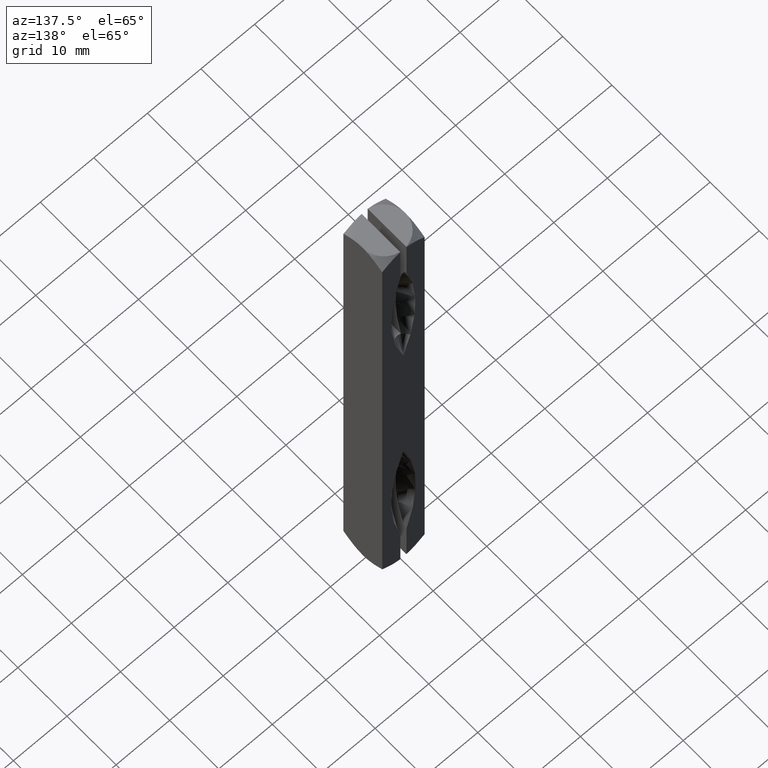
[diagram: clean part render]
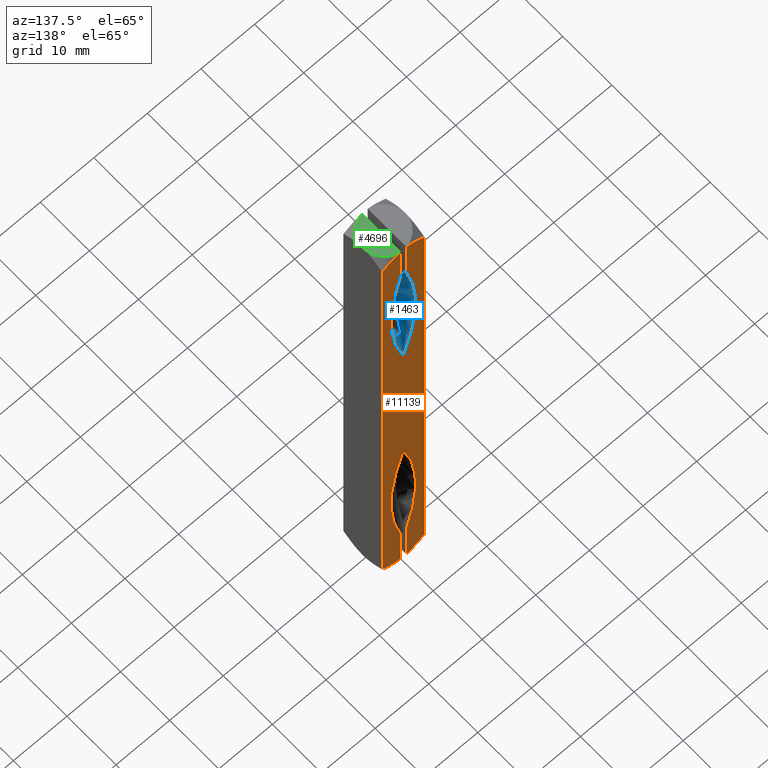
[diagram: same view with three faces highlighted in distinct colors, each labeled with its STEP entity id]
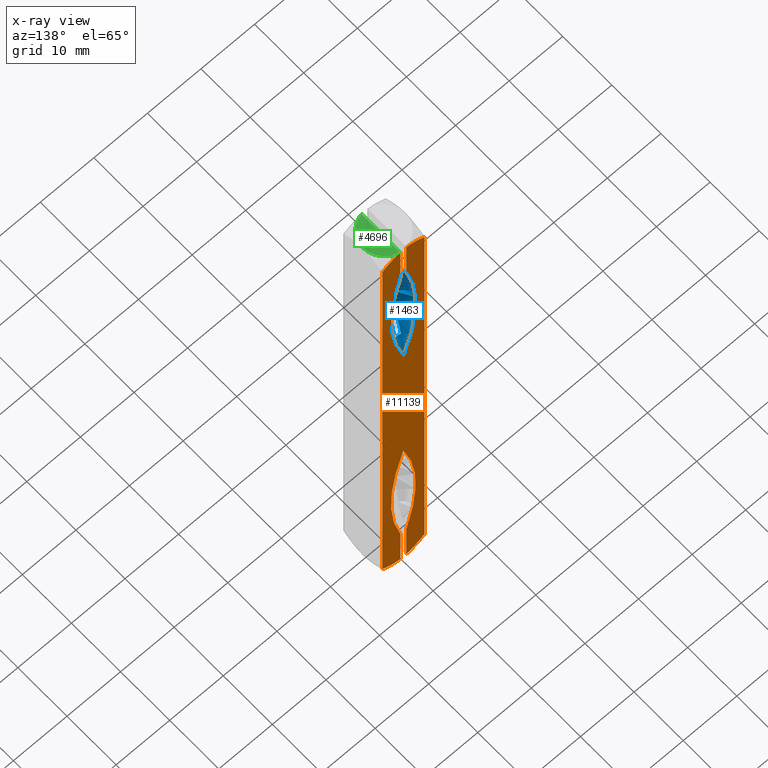
[diagram: x-ray of the same camera — body ghosted, the three highlighted faces saturated]
A machine part, auxiliary view with three faces highlighted in distinct colors.
The next image is the same camera in x-ray (body ghosted, the three faces saturated) — at least one of them is partly hidden behind the body in this view.
Their STEP definitions:

[orange] entity #11139 — the highlighted planar face has unit normal (0, -1, 0).
#27 = PLANE ( 'NONE',  #8204 ) ;
#112 = CARTESIAN_POINT ( 'NONE',  ( -3.950000000000000178, 3.949999999999999734, -48.36385642862627776 ) ) ;
#133 = DIRECTION ( 'NONE',  ( 1.000000000000000000, 1.097926250618232642E-16, 0.000000000000000000 ) ) ;
#300 = VERTEX_POINT ( 'NONE', #3469 ) ;
#350 = EDGE_CURVE ( 'NONE', #5080, #1837, #11389, .T. ) ;
#380 = CARTESIAN_POINT ( 'NONE',  ( 0.5749999999999996225, 3.950000000000000178, -41.66519112057019925 ) ) ;
#493 = CARTESIAN_POINT ( 'NONE',  ( -41.45869565217392960, 3.949999999999996181, 29.50000000000000355 ) ) ;
#658 = ORIENTED_EDGE ( 'NONE', *, *, #6502, .F. ) ;
#884 = CARTESIAN_POINT ( 'NONE',  ( -3.434571444506581361, 3.949999999999999734, 48.71974498816135934 ) ) ;
#921 = CARTESIAN_POINT ( 'NONE',  ( -0.8847542057004180727, 3.949999999999999734, 49.91374761358014922 ) ) ;
#926 = CARTESIAN_POINT ( 'NONE',  ( -0.5749999999999999556, 3.949999999999999734, -49.95836812819619155 ) ) ;
#1037 = CARTESIAN_POINT ( 'NONE',  ( 0.5749999999999999556, 3.950000000000000178, 50.00000000000000000 ) ) ;
#1087 = VERTEX_POINT ( 'NONE', #6215 ) ;
#1097 = CARTESIAN_POINT ( 'NONE',  ( 3.439399596264872905, 3.950000000000001066, -48.72490543658398821 ) ) ;
#1176 = AXIS2_PLACEMENT_3D ( 'NONE', #493, #5851, #1346 ) ;
#1346 = DIRECTION ( 'NONE',  ( 1.000000000000000000, 1.189288288960203285E-16, 0.000000000000000000 ) ) ;
#1386 = ORIENTED_EDGE ( 'NONE', *, *, #5367, .F. ) ;
#1400 = CIRCLE ( 'NONE', #6655, 43.75869565217392676 ) ;
#1547 = CARTESIAN_POINT ( 'NONE',  ( -0.5749999999999999556, 3.949999999999999734, 49.95836812819619155 ) ) ;
#1555 = CARTESIAN_POINT ( 'NONE',  ( 0.8878538644536024815, 3.950000000000001066, 49.91330110352105720 ) ) ;
#1564 = AXIS2_PLACEMENT_3D ( 'NONE', #4280, #1592, #11255 ) ;
#1583 = LINE ( 'NONE', #11079, #8012 ) ;
#1592 = DIRECTION ( 'NONE',  ( -1.097926250618232642E-16, 1.000000000000000000, -0.000000000000000000 ) ) ;
#1600 = CARTESIAN_POINT ( 'NONE',  ( -0.5749999999999999556, 3.949999999999999734, 50.00000000000000000 ) ) ;
#1760 = ORIENTED_EDGE ( 'NONE', *, *, #2490, .T. ) ;
#1794 = CARTESIAN_POINT ( 'NONE',  ( -1.193592490280931839, 3.949999999999999734, -49.83290573236171639 ) ) ;
#1822 = CARTESIAN_POINT ( 'NONE',  ( -0.5749999999999999556, 3.949999999999999734, 49.95836812819619155 ) ) ;
#1837 = VERTEX_POINT ( 'NONE', #1547 ) ;
#1867 = CARTESIAN_POINT ( 'NONE',  ( -2.901610006892348270, 3.949999999999999734, 49.05320236138543066 ) ) ;
#2022 = CARTESIAN_POINT ( 'NONE',  ( 3.949999999999998845, 3.950000000000000178, -48.36385642862627776 ) ) ;
#2125 = CIRCLE ( 'NONE', #9594, 43.75869565217392676 ) ;
#2147 = CARTESIAN_POINT ( 'NONE',  ( 3.949999999999998845, 3.950000000000000178, 48.36385642862627776 ) ) ;
#2240 = VECTOR ( 'NONE', #5919, 1000.000000000000000 ) ;
#2246 = EDGE_CURVE ( 'NONE', #3272, #1087, #5876, .T. ) ;
#2331 = CARTESIAN_POINT ( 'NONE',  ( -3.950000000000000178, 3.949999999999999734, 48.36385642862627776 ) ) ;
#2346 = CARTESIAN_POINT ( 'NONE',  ( 3.949999999999998845, 3.950000000000000178, 48.36385642862627776 ) ) ;
#2490 = EDGE_CURVE ( 'NONE', #300, #9243, #11150, .T. ) ;
#2600 = VECTOR ( 'NONE', #6360, 1000.000000000000000 ) ;
#2606 = VERTEX_POINT ( 'NONE', #3558 ) ;
#2653 = ORIENTED_EDGE ( 'NONE', *, *, #8607, .F. ) ;
#2684 = VERTEX_POINT ( 'NONE', #10040 ) ;
#2801 = ORIENTED_EDGE ( 'NONE', *, *, #350, .T. ) ;
#2871 = EDGE_CURVE ( 'NONE', #9243, #2684, #3571, .T. ) ;
#2981 = EDGE_CURVE ( 'NONE', #4907, #9829, #11568, .T. ) ;
#2991 = DIRECTION ( 'NONE',  ( 1.000000000000000000, 1.189288288960203285E-16, 0.000000000000000000 ) ) ;
#3272 = VERTEX_POINT ( 'NONE', #112 ) ;
#3331 = CARTESIAN_POINT ( 'NONE',  ( 0.5749999999999999556, 3.950000000000000178, -49.95836812819619155 ) ) ;
#3355 = EDGE_LOOP ( 'NONE', ( #8167, #8796, #1760, #7972, #2653, #7968, #3649, #7186, #1386, #4357, #658, #2801, #10518, #10829 ) ) ;
#3381 = EDGE_CURVE ( 'NONE', #7448, #300, #8165, .T. ) ;
#3469 = CARTESIAN_POINT ( 'NONE',  ( 0.5749999999999999556, 3.950000000000000178, 49.95836812819619155 ) ) ;
#3506 = CARTESIAN_POINT ( 'NONE',  ( -2.071111263113985856, 3.949999999999999734, 49.49639762068309068 ) ) ;
#3558 = CARTESIAN_POINT ( 'NONE',  ( -0.5750000000000002887, 3.950000000000557066, -41.66519112057266483 ) ) ;
#3560 = CARTESIAN_POINT ( 'NONE',  ( -3.950000000000000178, 3.949999999999999734, -48.36385642862627776 ) ) ;
#3571 = LINE ( 'NONE', #8725, #7191 ) ;
#3643 = VERTEX_POINT ( 'NONE', #7467 ) ;
#3649 = ORIENTED_EDGE ( 'NONE', *, *, #5082, .F. ) ;
#3811 = VERTEX_POINT ( 'NONE', #7921 ) ;
#3840 = CARTESIAN_POINT ( 'NONE',  ( 0.5749999999999999556, 3.950000000000000178, -50.00000000000000000 ) ) ;
#3981 = EDGE_CURVE ( 'NONE', #3643, #7448, #6200, .T. ) ;
#4280 = CARTESIAN_POINT ( 'NONE',  ( -41.45869565217392960, 3.949999999999996181, -29.50000000000000355 ) ) ;
#4357 = ORIENTED_EDGE ( 'NONE', *, *, #2246, .F. ) ;
#4369 = CARTESIAN_POINT ( 'NONE',  ( -2.071111263113985856, 3.949999999999999734, -49.49639762068309068 ) ) ;
#4463 = CARTESIAN_POINT ( 'NONE',  ( -3.694443923187062495, 3.950000000000000178, 48.54456186351412583 ) ) ;
#4652 = CARTESIAN_POINT ( 'NONE',  ( 1.192251377293276127, 3.950000000000000178, -49.83343443617616941 ) ) ;
#4864 = CARTESIAN_POINT ( 'NONE',  ( -4.336808689942019708E-16, 3.950000000000000178, -15.50000000000000000 ) ) ;
#4907 = VERTEX_POINT ( 'NONE', #380 ) ;
#4941 = CARTESIAN_POINT ( 'NONE',  ( 2.915151072964055956, 3.950000000000000178, 49.06418117581977612 ) ) ;
#5058 = CARTESIAN_POINT ( 'NONE',  ( 2.078530656980428049, 3.949999999999999734, 49.49293317941775427 ) ) ;
#5080 = VERTEX_POINT ( 'NONE', #2331 ) ;
#5082 = EDGE_CURVE ( 'NONE', #6182, #4907, #7444, .T. ) ;
#5249 = CARTESIAN_POINT ( 'NONE',  ( 41.45869565217392960, 3.950000000000004619, 29.50000000000000355 ) ) ;
#5352 = CARTESIAN_POINT ( 'NONE',  ( -3.950000000000000178, 3.949999999999999734, 50.00000000000000000 ) ) ;
#5367 = EDGE_CURVE ( 'NONE', #1087, #2606, #1583, .T. ) ;
#5405 = DIRECTION ( 'NONE',  ( -0.000000000000000000, -0.000000000000000000, -1.000000000000000000 ) ) ;
#5562 = DIRECTION ( 'NONE',  ( 0.000000000000000000, 0.000000000000000000, 1.000000000000000000 ) ) ;
#5648 = DIRECTION ( 'NONE',  ( 0.000000000000000000, 0.000000000000000000, -1.000000000000000000 ) ) ;
#5851 = DIRECTION ( 'NONE',  ( 1.097926250618232642E-16, -1.000000000000000000, 0.000000000000000000 ) ) ;
#5876 = B_SPLINE_CURVE_WITH_KNOTS ( 'NONE', 3,
 ( #3560, #6250, #11508, #6216, #7100, #4369, #11553, #1794, #9813, #926 ),
 .UNSPECIFIED., .F., .F.,
 ( 4, 2, 2, 2, 4 ),
 ( 0.004661118549124539795, 0.005599011887499370961, 0.006536905225874202127, 0.007474798564249033293, 0.008412691902623864459 ),
 .UNSPECIFIED. ) ;
#5877 = CARTESIAN_POINT ( 'NONE',  ( 1.192251377293276127, 3.950000000000000178, 49.83343443617616941 ) ) ;
#5906 = FACE_OUTER_BOUND ( 'NONE', #3355, .T. ) ;
#5918 = EDGE_CURVE ( 'NONE', #3811, #3643, #2125, .T. ) ;
#5919 = DIRECTION ( 'NONE',  ( 0.000000000000000000, 0.000000000000000000, -1.000000000000000000 ) ) ;
#6149 = DIRECTION ( 'NONE',  ( 1.097926250618232642E-16, -1.000000000000000000, 0.000000000000000000 ) ) ;
#6182 = VERTEX_POINT ( 'NONE', #4864 ) ;
#6200 = CIRCLE ( 'NONE', #1176, 43.75869565217392676 ) ;
#6215 = CARTESIAN_POINT ( 'NONE',  ( -0.5749999999999999556, 3.949999999999999734, -49.95836812819619155 ) ) ;
#6216 = CARTESIAN_POINT ( 'NONE',  ( -2.901610006892348270, 3.949999999999999734, -49.05320236138543066 ) ) ;
#6230 = VECTOR ( 'NONE', #5648, 1000.000000000000000 ) ;
#6250 = CARTESIAN_POINT ( 'NONE',  ( -3.694443923187062495, 3.950000000000000178, -48.54456186351412583 ) ) ;
#6301 = LINE ( 'NONE', #1600, #2240 ) ;
#6360 = DIRECTION ( 'NONE',  ( -0.000000000000000000, 0.000000000000000000, 1.000000000000000000 ) ) ;
#6371 = DIRECTION ( 'NONE',  ( 1.097926250618232642E-16, -1.000000000000000000, 0.000000000000000000 ) ) ;
#6413 = CARTESIAN_POINT ( 'NONE',  ( 0.8878538644536024815, 3.950000000000001066, -49.91330110352105720 ) ) ;
#6502 = EDGE_CURVE ( 'NONE', #5080, #3272, #7559, .T. ) ;
#6536 = CARTESIAN_POINT ( 'NONE',  ( 2.078530656980428049, 3.949999999999999734, -49.49293317941775427 ) ) ;
#6655 = AXIS2_PLACEMENT_3D ( 'NONE', #7433, #8207, #2991 ) ;
#7100 = CARTESIAN_POINT ( 'NONE',  ( -2.628797343441368728, 3.949999999999999734, -49.21126095234776443 ) ) ;
#7174 = CARTESIAN_POINT ( 'NONE',  ( -3.950000000000000178, 3.949999999999999734, 48.36385642862627776 ) ) ;
#7186 = ORIENTED_EDGE ( 'NONE', *, *, #7399, .F. ) ;
#7191 = VECTOR ( 'NONE', #7864, 1000.000000000000000 ) ;
#7195 = EDGE_CURVE ( 'NONE', #1837, #3811, #6301, .T. ) ;
#7304 = CARTESIAN_POINT ( 'NONE',  ( -3.950000000000000178, 3.949999999999999734, 50.00000000000000000 ) ) ;
#7326 = CARTESIAN_POINT ( 'NONE',  ( 1.788693820779227783, 3.949999999999999734, -49.62286766101424718 ) ) ;
#7399 = EDGE_CURVE ( 'NONE', #2606, #6182, #1400, .T. ) ;
#7433 = CARTESIAN_POINT ( 'NONE',  ( 41.45869565217392960, 3.950000000000004619, -29.50000000000000355 ) ) ;
#7444 = CIRCLE ( 'NONE', #1564, 43.75869565217392676 ) ;
#7448 = VERTEX_POINT ( 'NONE', #10187 ) ;
#7467 = CARTESIAN_POINT ( 'NONE',  ( -4.336808689942019708E-16, 3.950000000000000178, 15.50000000000000000 ) ) ;
#7559 = LINE ( 'NONE', #7304, #10672 ) ;
#7677 = CARTESIAN_POINT ( 'NONE',  ( 3.439399596264872905, 3.950000000000001066, 48.72490543658398821 ) ) ;
#7864 = DIRECTION ( 'NONE',  ( -0.000000000000000000, -0.000000000000000000, -1.000000000000000000 ) ) ;
#7921 = CARTESIAN_POINT ( 'NONE',  ( -0.5750000000000002887, 3.950000000000557066, 41.66519112057266483 ) ) ;
#7968 = ORIENTED_EDGE ( 'NONE', *, *, #2981, .F. ) ;
#7972 = ORIENTED_EDGE ( 'NONE', *, *, #2871, .T. ) ;
#7988 = DIRECTION ( 'NONE',  ( 1.000000000000000000, 1.189288288960203285E-16, 0.000000000000000000 ) ) ;
#8012 = VECTOR ( 'NONE', #5562, 1000.000000000000000 ) ;
#8063 = CARTESIAN_POINT ( 'NONE',  ( -1.785555383880211400, 3.949999999999999734, 49.62403072079002442 ) ) ;
#8165 = LINE ( 'NONE', #1037, #2600 ) ;
#8167 = ORIENTED_EDGE ( 'NONE', *, *, #3981, .T. ) ;
#8204 = AXIS2_PLACEMENT_3D ( 'NONE', #5352, #6371, #133 ) ;
#8207 = DIRECTION ( 'NONE',  ( -1.097926250618232642E-16, 1.000000000000000000, -0.000000000000000000 ) ) ;
#8462 = CARTESIAN_POINT ( 'NONE',  ( 0.5749999999999999556, 3.950000000000000178, 49.95836812819619155 ) ) ;
#8586 = CARTESIAN_POINT ( 'NONE',  ( 1.788693820779227783, 3.949999999999999734, 49.62286766101424718 ) ) ;
#8607 = EDGE_CURVE ( 'NONE', #9829, #2684, #11344, .T. ) ;
#8725 = CARTESIAN_POINT ( 'NONE',  ( 3.949999999999998845, 3.950000000000000178, 50.00000000000000000 ) ) ;
#8796 = ORIENTED_EDGE ( 'NONE', *, *, #3381, .T. ) ;
#9021 = CARTESIAN_POINT ( 'NONE',  ( 0.5749999999999999556, 3.950000000000000178, -49.95836812819619155 ) ) ;
#9242 = CARTESIAN_POINT ( 'NONE',  ( 2.915151072964055956, 3.950000000000000178, -49.06418117581977612 ) ) ;
#9243 = VERTEX_POINT ( 'NONE', #2147 ) ;
#9594 = AXIS2_PLACEMENT_3D ( 'NONE', #5249, #6149, #7988 ) ;
#9813 = CARTESIAN_POINT ( 'NONE',  ( -0.8847542057004180727, 3.949999999999999734, -49.91374761358014922 ) ) ;
#9829 = VERTEX_POINT ( 'NONE', #3331 ) ;
#10040 = CARTESIAN_POINT ( 'NONE',  ( 3.949999999999998845, 3.950000000000000178, -48.36385642862627776 ) ) ;
#10187 = CARTESIAN_POINT ( 'NONE',  ( 0.5749999999999996225, 3.950000000000000178, 41.66519112057019925 ) ) ;
#10518 = ORIENTED_EDGE ( 'NONE', *, *, #7195, .T. ) ;
#10672 = VECTOR ( 'NONE', #5405, 1000.000000000000000 ) ;
#10753 = CARTESIAN_POINT ( 'NONE',  ( -2.628797343441368728, 3.949999999999999734, 49.21126095234776443 ) ) ;
#10829 = ORIENTED_EDGE ( 'NONE', *, *, #5918, .T. ) ;
#11079 = CARTESIAN_POINT ( 'NONE',  ( -0.5749999999999999556, 3.949999999999999734, -50.00000000000000000 ) ) ;
#11139 = ADVANCED_FACE ( 'NONE', ( #5906 ), #27, .F. ) ;
#11150 = B_SPLINE_CURVE_WITH_KNOTS ( 'NONE', 3,
 ( #8462, #1555, #5877, #8586, #5058, #4941, #7677, #2346 ),
 .UNSPECIFIED., .F., .F.,
 ( 4, 2, 2, 4 ),
 ( 0.009560210259937361107, 0.01050151590761409098, 0.01144282155529081912, 0.01332543285064428061 ),
 .UNSPECIFIED. ) ;
#11255 = DIRECTION ( 'NONE',  ( 1.000000000000000000, 1.189288288960203285E-16, 0.000000000000000000 ) ) ;
#11344 = B_SPLINE_CURVE_WITH_KNOTS ( 'NONE', 3,
 ( #9021, #6413, #4652, #7326, #6536, #9242, #1097, #2022 ),
 .UNSPECIFIED., .F., .F.,
 ( 4, 2, 2, 4 ),
 ( 0.009560210259937361107, 0.01050151590761409098, 0.01144282155529081912, 0.01332543285064428061 ),
 .UNSPECIFIED. ) ;
#11389 = B_SPLINE_CURVE_WITH_KNOTS ( 'NONE', 3,
 ( #7174, #4463, #884, #1867, #10753, #3506, #8063, #11611, #921, #1822 ),
 .UNSPECIFIED., .F., .F.,
 ( 4, 2, 2, 2, 4 ),
 ( 0.004661118549124539795, 0.005599011887499370961, 0.006536905225874202127, 0.007474798564249033293, 0.008412691902623864459 ),
 .UNSPECIFIED. ) ;
#11508 = CARTESIAN_POINT ( 'NONE',  ( -3.434571444506581361, 3.949999999999999734, -48.71974498816135934 ) ) ;
#11553 = CARTESIAN_POINT ( 'NONE',  ( -1.785555383880211400, 3.949999999999999734, -49.62403072079002442 ) ) ;
#11568 = LINE ( 'NONE', #3840, #6230 ) ;
#11611 = CARTESIAN_POINT ( 'NONE',  ( -1.193592490280931839, 3.949999999999999734, 49.83290573236171639 ) ) ;

[blue] entity #1463 — the highlighted toroidal blend (fillet) surface has major radius 41.4587 mm and minor (blend) radius 43.7587 mm.
#336 = TOROIDAL_SURFACE ( 'NONE', #3139, -41.45869565217392960, 43.75869565217392676 ) ;
#345 = CARTESIAN_POINT ( 'NONE',  ( -0.5750000000000005107, 1.797053306296788167, 32.00469167351272404 ) ) ;
#422 = CARTESIAN_POINT ( 'NONE',  ( -0.5750000000000003997, 3.423725090174374763, 40.95122227692382921 ) ) ;
#465 = CARTESIAN_POINT ( 'NONE',  ( -0.5750000000000001776, 1.713741310024385456, 29.21709193567127016 ) ) ;
#493 = CARTESIAN_POINT ( 'NONE',  ( -41.45869565217392960, 3.949999999999996181, 29.50000000000000355 ) ) ;
#633 = CARTESIAN_POINT ( 'NONE',  ( 0.5749999999999999556, 2.018900622271412537, 34.57466454406282708 ) ) ;
#670 = CARTESIAN_POINT ( 'NONE',  ( 0.5749999999999998446, 2.610368242112415249, 20.88993279988914509 ) ) ;
#718 = CARTESIAN_POINT ( 'NONE',  ( 0.5749999999999997335, 2.832976762361322454, 20.00000000000000355 ) ) ;
#768 = CARTESIAN_POINT ( 'NONE',  ( 0.5749999999999997335, 3.338265758960102580, 40.71829712493093467 ) ) ;
#796 = CARTESIAN_POINT ( 'NONE',  ( 0.5750000000000000666, 1.798040783058213021, 32.02138522722812297 ) ) ;
#1176 = AXIS2_PLACEMENT_3D ( 'NONE', #493, #5851, #1346 ) ;
#1315 = CARTESIAN_POINT ( 'NONE',  ( -0.5750000000000000666, 2.656006524776936217, 38.31868199677725073 ) ) ;
#1346 = DIRECTION ( 'NONE',  ( 1.000000000000000000, 1.189288288960203285E-16, 0.000000000000000000 ) ) ;
#1351 = CARTESIAN_POINT ( 'NONE',  ( -0.5750000000000001776, 1.898099659623143420, 33.37009079281760648 ) ) ;
#1378 = CARTESIAN_POINT ( 'NONE',  ( -0.5750000000000001776, 2.119995233940013435, 23.65323532807944673 ) ) ;
#1463 = ADVANCED_FACE ( 'NONE', ( #4669 ), #336, .F. ) ;
#1549 = CARTESIAN_POINT ( 'NONE',  ( 0.5749999999999998446, 2.141740618282792052, 35.49938617945537089 ) ) ;
#1604 = CARTESIAN_POINT ( 'NONE',  ( 0.5749999999999999556, 1.833610658234124058, 32.60322987113372761 ) ) ;
#1606 = B_SPLINE_CURVE_WITH_KNOTS ( 'NONE', 3,
 ( #718, #670, #7800, #2466, #3435, #9657, #4405, #6942, #6084, #6117, #9775, #8701, #9621, #796, #1604, #7840, #633, #1549, #10514, #6160, #2595, #5127, #768, #6978, #1674, #7024, #5171, #7892, #2543, #2502, #8789 ),
 .UNSPECIFIED., .F., .F.,
 ( 4, 2, 2, 2, 2, 2, 2, 1, 2, 2, 2, 2, 2, 2, 2, 4 ),
 ( 0.03861330230306312533, 0.04140856419607732986, 0.04420382608909154132, 0.04699908798210574584, 0.04979434987511995037, 0.05049316534837350323, 0.05084257308500027273, 0.05119198082162704916, 0.05258961176813410632, 0.05538487366114823451, 0.05818013555416237659, 0.05957776650066944069, 0.06027658197392297967, 0.06062598971054974917, 0.06080069357886313391, 0.06097539744717651866 ),
 .UNSPECIFIED. ) ;
#1674 = CARTESIAN_POINT ( 'NONE',  ( 0.5749999999999995115, 3.564389802798315632, 41.25664807164782388 ) ) ;
#1710 = ORIENTED_EDGE ( 'NONE', *, *, #10587, .T. ) ;
#2125 = CIRCLE ( 'NONE', #9594, 43.75869565217392676 ) ;
#2244 = CARTESIAN_POINT ( 'NONE',  ( -0.5750000000000002887, 3.838175792654273000, 41.63303785578739280 ) ) ;
#2293 = CARTESIAN_POINT ( 'NONE',  ( -0.5750000000000002887, 3.123804794351551450, 40.08805091065506332 ) ) ;
#2466 = CARTESIAN_POINT ( 'NONE',  ( 0.5749999999999998446, 2.130042562530008787, 23.58545922957388186 ) ) ;
#2502 = CARTESIAN_POINT ( 'NONE',  ( 0.5749999999999998446, 3.891179524348201024, 41.66519112057021346 ) ) ;
#2543 = CARTESIAN_POINT ( 'NONE',  ( 0.5749999999999995115, 3.837430416879069384, 41.63266135821610447 ) ) ;
#2595 = CARTESIAN_POINT ( 'NONE',  ( 0.5749999999999997335, 2.987801897168272713, 39.60581038113797092 ) ) ;
#3031 = CARTESIAN_POINT ( 'NONE',  ( -0.5750000000000000666, 1.717738489092452525, 30.14765667200343913 ) ) ;
#3136 = ORIENTED_EDGE ( 'NONE', *, *, #5918, .F. ) ;
#3139 = AXIS2_PLACEMENT_3D ( 'NONE', #11392, #5958, #6912 ) ;
#3143 = CARTESIAN_POINT ( 'NONE',  ( -0.5750000000000000666, 2.038517818991956609, 34.72960835983197825 ) ) ;
#3171 = CARTESIAN_POINT ( 'NONE',  ( -0.5749999999999999556, 2.999569653012168935, 39.64785277818430131 ) ) ;
#3435 = CARTESIAN_POINT ( 'NONE',  ( 0.5749999999999998446, 2.011698050703604856, 24.48871964632990483 ) ) ;
#3643 = VERTEX_POINT ( 'NONE', #7467 ) ;
#3811 = VERTEX_POINT ( 'NONE', #7921 ) ;
#3981 = EDGE_CURVE ( 'NONE', #3643, #7448, #6200, .T. ) ;
#4031 = CARTESIAN_POINT ( 'NONE',  ( -0.5750000000000000666, 3.892085402762736734, 41.66519112057047636 ) ) ;
#4076 = CARTESIAN_POINT ( 'NONE',  ( -0.5750000000000002887, 3.950000000000557066, 41.66519112057266483 ) ) ;
#4216 = DIRECTION ( 'NONE',  ( 1.000000000000000000, 0.000000000000000000, 0.000000000000000000 ) ) ;
#4405 = CARTESIAN_POINT ( 'NONE',  ( 0.5749999999999998446, 1.774965218622260865, 27.21268196257252825 ) ) ;
#4482 = ORIENTED_EDGE ( 'NONE', *, *, #3981, .F. ) ;
#4669 = FACE_OUTER_BOUND ( 'NONE', #5498, .T. ) ;
#4926 = CARTESIAN_POINT ( 'NONE',  ( -0.5750000000000002887, 1.818738552955122989, 32.34657570468970533 ) ) ;
#4931 = EDGE_CURVE ( 'NONE', #3811, #11488, #5597, .T. ) ;
#5075 = CARTESIAN_POINT ( 'NONE',  ( 0.5749999999999997335, 2.832976762361322454, 20.00000000000000355 ) ) ;
#5127 = CARTESIAN_POINT ( 'NONE',  ( 0.5749999999999997335, 3.113908154326070488, 40.05588645929623226 ) ) ;
#5171 = CARTESIAN_POINT ( 'NONE',  ( 0.5749999999999996225, 3.714853797911729316, 41.50689434541931178 ) ) ;
#5249 = CARTESIAN_POINT ( 'NONE',  ( 41.45869565217392960, 3.950000000000004619, 29.50000000000000355 ) ) ;
#5498 = EDGE_LOOP ( 'NONE', ( #11366, #1710, #4482, #3136, #8879 ) ) ;
#5597 = B_SPLINE_CURVE_WITH_KNOTS ( 'NONE', 3,
 ( #4076, #4031, #2244, #11169, #8452, #9407, #7547, #422, #6691, #2293, #3171, #1315, #8520, #10192, #3143, #1351, #10308, #4926, #9294, #345, #11098, #6627, #11212, #3031, #465, #7510, #6736, #6581, #1378, #7627, #9451, #10337 ),
 .UNSPECIFIED., .F., .F.,
 ( 4, 2, 2, 2, 2, 2, 2, 2, 2, 2, 2, 2, 2, 2, 2, 4 ),
 ( 0.04013997765228428938, 0.04031446014983714604, 0.04048894264739000270, 0.04083790764249572297, 0.04153583763270715656, 0.04293169761313001681, 0.04572341757397576506, 0.04851513753482152025, 0.04991099751524438743, 0.05025996251035010076, 0.05060892750545581409, 0.05130685749566724074, 0.05409857745651294042, 0.05689029741735863316, 0.05968201737820433284, 0.06247373733905002557 ),
 .UNSPECIFIED. ) ;
#5851 = DIRECTION ( 'NONE',  ( 1.097926250618232642E-16, -1.000000000000000000, 0.000000000000000000 ) ) ;
#5918 = EDGE_CURVE ( 'NONE', #3811, #3643, #2125, .T. ) ;
#5958 = DIRECTION ( 'NONE',  ( -0.000000000000000000, -0.000000000000000000, -1.000000000000000000 ) ) ;
#5967 = AXIS2_PLACEMENT_3D ( 'NONE', #11311, #5997, #4216 ) ;
#5997 = DIRECTION ( 'NONE',  ( 0.000000000000000000, -0.000000000000000000, -1.000000000000000000 ) ) ;
#6084 = CARTESIAN_POINT ( 'NONE',  ( 0.5749999999999999556, 1.715598200974848719, 29.95806234123621792 ) ) ;
#6117 = CARTESIAN_POINT ( 'NONE',  ( 0.5750000000000000666, 1.752741313846989613, 31.10247213723761561 ) ) ;
#6149 = DIRECTION ( 'NONE',  ( 1.097926250618232642E-16, -1.000000000000000000, 0.000000000000000000 ) ) ;
#6160 = CARTESIAN_POINT ( 'NONE',  ( 0.5749999999999998446, 2.640494055903904957, 38.25107675171013710 ) ) ;
#6200 = CIRCLE ( 'NONE', #1176, 43.75869565217392676 ) ;
#6354 = VERTEX_POINT ( 'NONE', #5075 ) ;
#6581 = CARTESIAN_POINT ( 'NONE',  ( -0.5750000000000000666, 2.001035175949065437, 24.57484465062620060 ) ) ;
#6627 = CARTESIAN_POINT ( 'NONE',  ( -0.5750000000000001776, 1.771722377317427322, 31.54329966053413159 ) ) ;
#6691 = CARTESIAN_POINT ( 'NONE',  ( -0.5750000000000000666, 3.345022024219240997, 40.73665252974367235 ) ) ;
#6736 = CARTESIAN_POINT ( 'NONE',  ( -0.5750000000000001776, 1.824528500665346886, 26.42545832768125535 ) ) ;
#6912 = DIRECTION ( 'NONE',  ( -1.000000000000000000, 0.000000000000000000, 0.000000000000000000 ) ) ;
#6942 = CARTESIAN_POINT ( 'NONE',  ( 0.5749999999999998446, 1.715649538479814051, 29.04046507952160994 ) ) ;
#6978 = CARTESIAN_POINT ( 'NONE',  ( 0.5749999999999996225, 3.418226339073121345, 40.93769629883396277 ) ) ;
#7024 = CARTESIAN_POINT ( 'NONE',  ( 0.5749999999999995115, 3.617102303695336918, 41.36165755676435651 ) ) ;
#7448 = VERTEX_POINT ( 'NONE', #10187 ) ;
#7467 = CARTESIAN_POINT ( 'NONE',  ( -4.336808689942019708E-16, 3.950000000000000178, 15.50000000000000000 ) ) ;
#7510 = CARTESIAN_POINT ( 'NONE',  ( -0.5750000000000001776, 1.767104975694737679, 27.35570147856964951 ) ) ;
#7547 = CARTESIAN_POINT ( 'NONE',  ( -0.5750000000000002887, 3.568300370325551807, 41.26436420200637656 ) ) ;
#7627 = CARTESIAN_POINT ( 'NONE',  ( -0.5750000000000000666, 2.423546255826428020, 21.81791955638477276 ) ) ;
#7800 = CARTESIAN_POINT ( 'NONE',  ( 0.5749999999999997335, 2.429968106696501096, 21.78651875056223730 ) ) ;
#7840 = CARTESIAN_POINT ( 'NONE',  ( 0.5749999999999997335, 1.881233041425730557, 33.18379399691699660 ) ) ;
#7892 = CARTESIAN_POINT ( 'NONE',  ( 0.5749999999999996225, 3.750768038285001715, 41.55379764750886551 ) ) ;
#7921 = CARTESIAN_POINT ( 'NONE',  ( -0.5750000000000002887, 3.950000000000557066, 41.66519112057266483 ) ) ;
#7988 = DIRECTION ( 'NONE',  ( 1.000000000000000000, 1.189288288960203285E-16, 0.000000000000000000 ) ) ;
#8452 = CARTESIAN_POINT ( 'NONE',  ( -0.5750000000000003997, 3.716727400158926997, 41.50931508105428236 ) ) ;
#8520 = CARTESIAN_POINT ( 'NONE',  ( -0.5750000000000001776, 2.471219910511959661, 37.42595704450668848 ) ) ;
#8701 = CARTESIAN_POINT ( 'NONE',  ( 0.5749999999999999556, 1.778759328303095577, 31.67450951654241109 ) ) ;
#8789 = CARTESIAN_POINT ( 'NONE',  ( 0.5749999999999996225, 3.950000000000000178, 41.66519112057019925 ) ) ;
#8879 = ORIENTED_EDGE ( 'NONE', *, *, #4931, .T. ) ;
#8971 = CIRCLE ( 'NONE', #5967, 1.256330336107822188 ) ;
#9294 = CARTESIAN_POINT ( 'NONE',  ( -0.5750000000000002887, 1.811202399092227244, 32.23266033241277029 ) ) ;
#9407 = CARTESIAN_POINT ( 'NONE',  ( -0.5750000000000005107, 3.620210601659142213, 41.36696449408719189 ) ) ;
#9451 = CARTESIAN_POINT ( 'NONE',  ( -0.5750000000000001776, 2.607124633328429475, 20.90289993090307519 ) ) ;
#9551 = CARTESIAN_POINT ( 'NONE',  ( -0.5750000000000001776, 2.832976762361322898, 20.00000000000000355 ) ) ;
#9594 = AXIS2_PLACEMENT_3D ( 'NONE', #5249, #6149, #7988 ) ;
#9621 = CARTESIAN_POINT ( 'NONE',  ( 0.5749999999999999556, 1.784777666526436102, 31.78854486097393206 ) ) ;
#9657 = CARTESIAN_POINT ( 'NONE',  ( 0.5749999999999998446, 1.834091365121487627, 26.30232285982825147 ) ) ;
#9775 = CARTESIAN_POINT ( 'NONE',  ( 0.5749999999999999556, 1.762029260111473983, 31.33131226829906879 ) ) ;
#10187 = CARTESIAN_POINT ( 'NONE',  ( 0.5749999999999996225, 3.950000000000000178, 41.66519112057019925 ) ) ;
#10192 = CARTESIAN_POINT ( 'NONE',  ( -0.5750000000000001776, 2.161638308738178527, 35.63154529835278339 ) ) ;
#10308 = CARTESIAN_POINT ( 'NONE',  ( -0.5750000000000001776, 1.858727775207912103, 32.91580771812270001 ) ) ;
#10337 = CARTESIAN_POINT ( 'NONE',  ( -0.5750000000000001776, 2.832976762361322898, 20.00000000000000355 ) ) ;
#10514 = CARTESIAN_POINT ( 'NONE',  ( 0.5749999999999999556, 2.453523791816925925, 37.33831311765551675 ) ) ;
#10587 = EDGE_CURVE ( 'NONE', #6354, #7448, #1606, .T. ) ;
#11098 = CARTESIAN_POINT ( 'NONE',  ( -0.5750000000000002887, 1.790522158601205227, 31.89218784807994922 ) ) ;
#11169 = CARTESIAN_POINT ( 'NONE',  ( -0.5750000000000001776, 3.752541703626187886, 41.55570475752237058 ) ) ;
#11212 = CARTESIAN_POINT ( 'NONE',  ( -0.5750000000000001776, 1.761122091421702285, 31.31069931396687878 ) ) ;
#11311 = CARTESIAN_POINT ( 'NONE',  ( 0.000000000000000000, 3.950000000000000178, 20.00000000000000355 ) ) ;
#11366 = ORIENTED_EDGE ( 'NONE', *, *, #11424, .F. ) ;
#11392 = CARTESIAN_POINT ( 'NONE',  ( 0.000000000000000000, 3.950000000000000178, 29.50000000000000355 ) ) ;
#11424 = EDGE_CURVE ( 'NONE', #6354, #11488, #8971, .T. ) ;
#11488 = VERTEX_POINT ( 'NONE', #9551 ) ;

[green] entity #4696 — the highlighted planar face has unit normal (-0, 0, 1).
#953 = DIRECTION ( 'NONE',  ( -0.000000000000000000, 0.000000000000000000, 1.000000000000000000 ) ) ;
#1017 = AXIS2_PLACEMENT_3D ( 'NONE', #4070, #9446, #3168 ) ;
#1429 = EDGE_CURVE ( 'NONE', #3089, #3766, #3716, .T. ) ;
#1609 = CARTESIAN_POINT ( 'NONE',  ( 0.5749999999999989564, 10.00000000000000000, 50.00000000000000000 ) ) ;
#1871 = DIRECTION ( 'NONE',  ( 1.000000000000000000, 0.000000000000000000, 0.000000000000000000 ) ) ;
#1884 = DIRECTION ( 'NONE',  ( 0.000000000000000000, -0.000000000000000000, -1.000000000000000000 ) ) ;
#2534 = CARTESIAN_POINT ( 'NONE',  ( 0.5749999999999996225, 3.907924641033908575, 50.00000000000000000 ) ) ;
#3089 = VERTEX_POINT ( 'NONE', #9552 ) ;
#3168 = DIRECTION ( 'NONE',  ( 1.000000000000000000, -3.552713678800500929E-15, 0.000000000000000000 ) ) ;
#3205 = VERTEX_POINT ( 'NONE', #6125 ) ;
#3288 = ORIENTED_EDGE ( 'NONE', *, *, #1429, .F. ) ;
#3423 = CARTESIAN_POINT ( 'NONE',  ( 0.000000000000000000, 0.000000000000000000, 50.00000000000000000 ) ) ;
#3589 = PLANE ( 'NONE',  #5801 ) ;
#3716 = LINE ( 'NONE', #1609, #11440 ) ;
#3766 = VERTEX_POINT ( 'NONE', #2534 ) ;
#3842 = ORIENTED_EDGE ( 'NONE', *, *, #10778, .F. ) ;
#3954 = EDGE_CURVE ( 'NONE', #3766, #3205, #8722, .T. ) ;
#4070 = CARTESIAN_POINT ( 'NONE',  ( 0.000000000000000000, 0.000000000000000000, 50.00000000000000000 ) ) ;
#4452 = EDGE_LOOP ( 'NONE', ( #3288, #3842, #6835 ) ) ;
#4580 = CARTESIAN_POINT ( 'NONE',  ( 0.000000000000000000, 0.000000000000000000, 50.00000000000000000 ) ) ;
#4696 = ADVANCED_FACE ( 'NONE', ( #5201 ), #3589, .T. ) ;
#5201 = FACE_OUTER_BOUND ( 'NONE', #4452, .T. ) ;
#5801 = AXIS2_PLACEMENT_3D ( 'NONE', #4580, #953, #1871 ) ;
#5977 = AXIS2_PLACEMENT_3D ( 'NONE', #3423, #1884, #10201 ) ;
#6125 = CARTESIAN_POINT ( 'NONE',  ( 3.950000000000000178, 1.734723475976807094E-15, 50.00000000000000000 ) ) ;
#6835 = ORIENTED_EDGE ( 'NONE', *, *, #3954, .F. ) ;
#8722 = CIRCLE ( 'NONE', #1017, 3.950000000000000178 ) ;
#9446 = DIRECTION ( 'NONE',  ( 0.000000000000000000, -0.000000000000000000, -1.000000000000000000 ) ) ;
#9467 = DIRECTION ( 'NONE',  ( -1.246832498358330099E-16, 1.000000000000000000, -0.000000000000000000 ) ) ;
#9528 = CIRCLE ( 'NONE', #5977, 3.950000000000000178 ) ;
#9552 = CARTESIAN_POINT ( 'NONE',  ( 0.5750000000000006217, -3.907924641033908575, 50.00000000000000000 ) ) ;
#10201 = DIRECTION ( 'NONE',  ( 1.000000000000000000, 0.000000000000000000, 0.000000000000000000 ) ) ;
#10778 = EDGE_CURVE ( 'NONE', #3205, #3089, #9528, .T. ) ;
#11440 = VECTOR ( 'NONE', #9467, 1000.000000000000000 ) ;